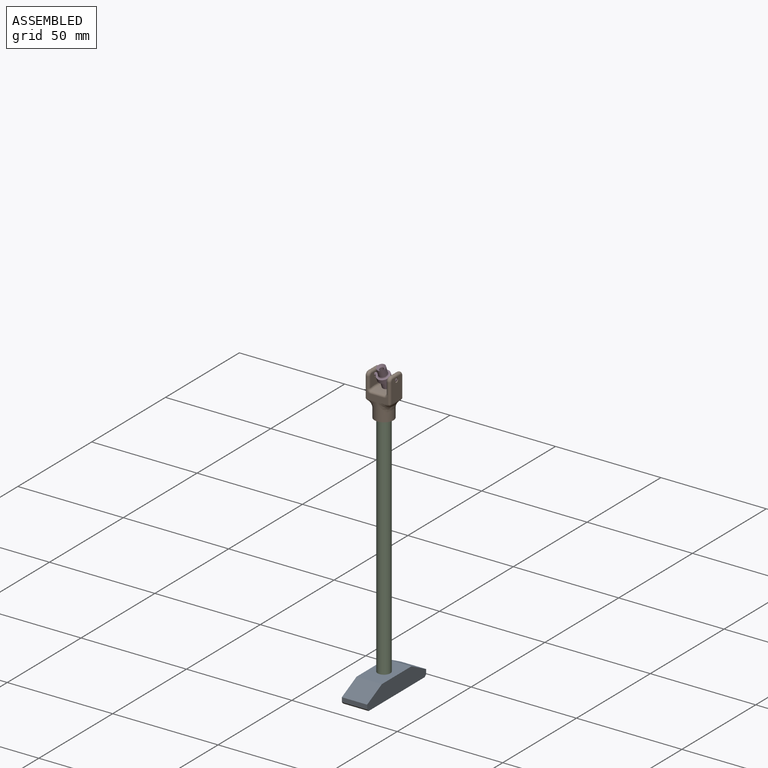
[diagram: assembled view]
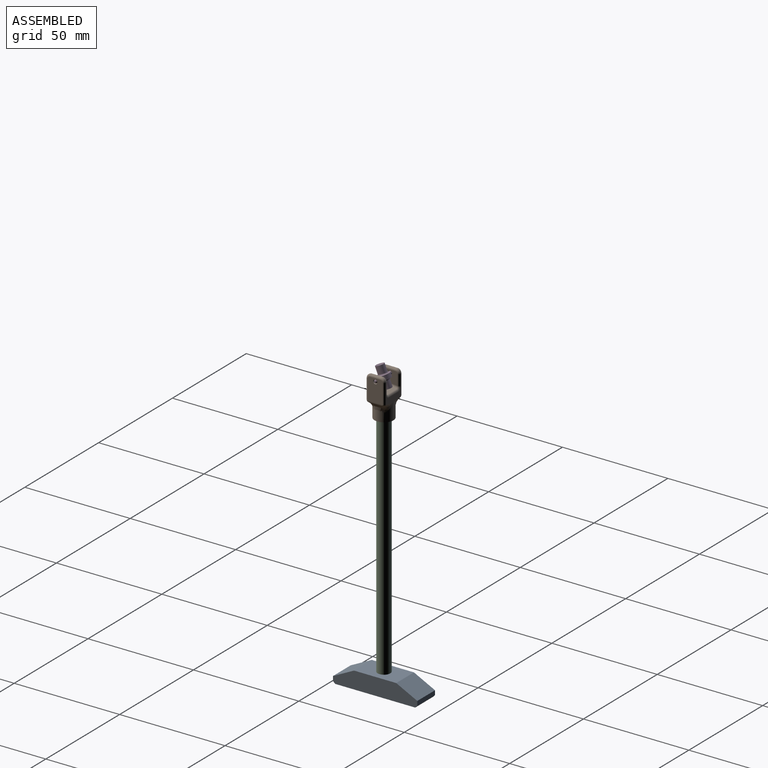
[diagram: assembled view, second angle]
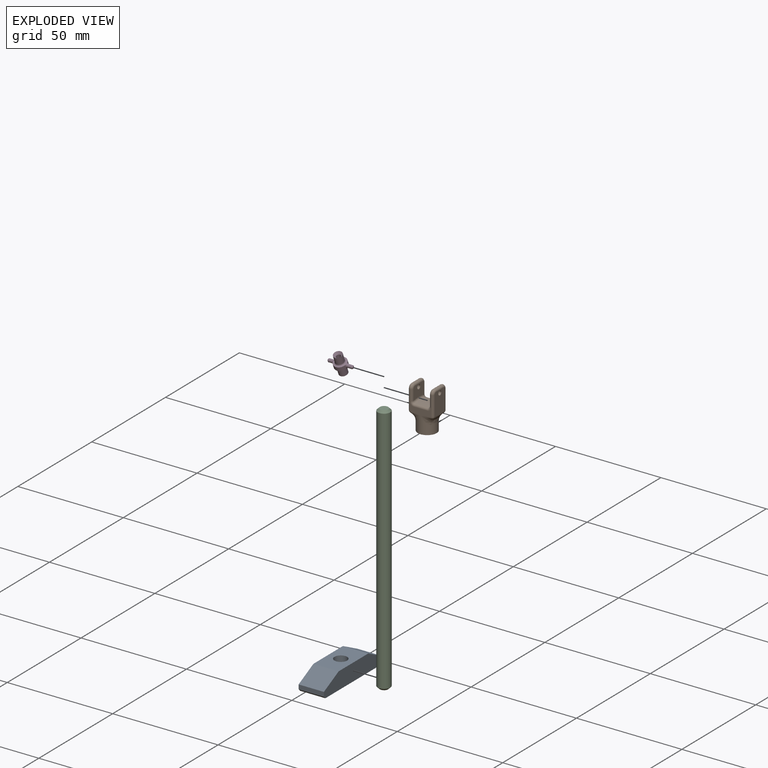
[diagram: exploded view]
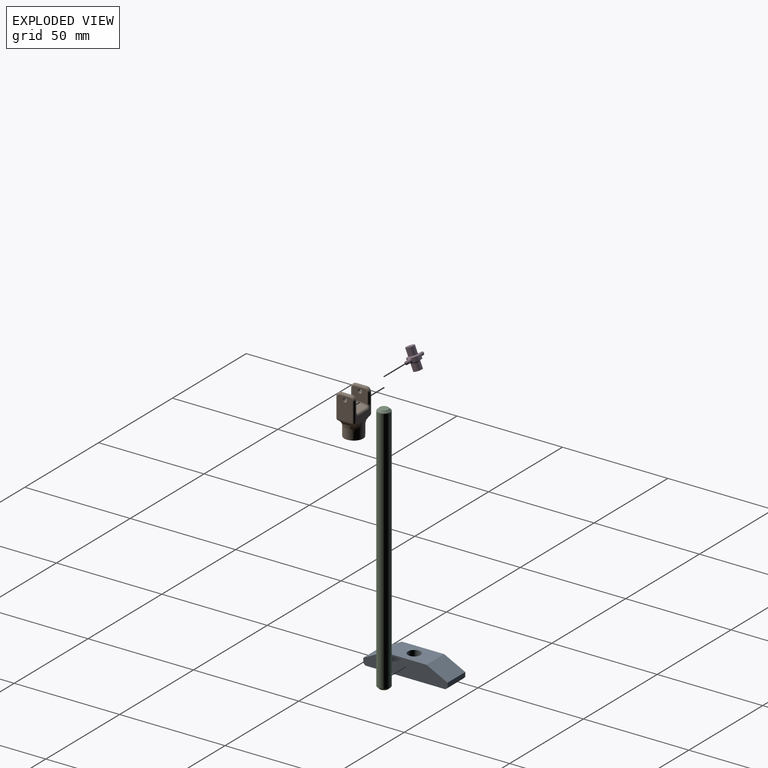
[diagram: exploded view, second angle]
ASSEMBLY  parts=4 mates=2
PART A: 12 faces, bbox 12x40x8.1 mm
  f0: plane 40x8.1mm, normal (1,0,0), area 273mm2, adj f1,f3,f5,f6,f8,f9,f10,f11
  f1: plane 12x2.1mm, normal (0,1,0), area 25.2mm2, adj f0,f2,f8,f10
  f2: plane 40x8.1mm, normal (-1,0,0), area 273mm2, adj f1,f3,f5,f6,f8,f9,f10,f11
  f3: plane 12x2.1mm, normal (0,-1,0), area 25.2mm2, adj f0,f2,f9,f11
  f4: cylinder r=3mm len=6.1mm, axis (0,0,-1), area 115mm2, adj f5,f7
  f5: plane 20x12mm, normal (0,0,1), area 211.7mm2, adj f0,f2,f4,f10,f11
  f6: plane 38x12mm, normal (0,0,-1), area 456mm2, adj f0,f2,f8,f9
  f7: plane 6x6mm, normal (0,0,1), area 28.3mm2, adj f4
  f8: plane 12x1mm, normal (0,0.71,-0.71), area 17mm2, adj f0,f1,f2,f6
  f9: plane 12x1mm, normal (0,-0.71,-0.71), area 17mm2, adj f0,f2,f3,f6
  f10: plane 12x10mm, normal (0,0.45,0.89), area 134.2mm2, adj f0,f1,f2,f5
  f11: plane 12x10mm, normal (0,-0.45,0.89), area 134.2mm2, adj f0,f2,f3,f5
PART B: 63 faces, bbox 12.4x9.7x20.5 mm
  f0: plane 10.37x5.36mm, normal (0,1,0), area 29.1mm2, adj f12,f14,f38,f39,f40,f41,f42,f43
  f1: plane 10.33x5.33mm, normal (0,-1,0), area 29.1mm2, adj f8,f13,f30,f31,f32,f49,f50,f51
  f2: plane 7x6mm, normal (-1,0,0), area 37.2mm2, adj f8,f9,f10,f11,f12,f28,f54
  f3: cylinder r=4.5mm len=9mm, axis (0,0,-1), area 148.7mm2, adj f18,f19,f20,f21,f22,f23,f24,f25
  f4: plane 7x6mm, normal (1,0,0), area 37.2mm2, adj f13,f14,f15,f16,f17,f29,f57
  f5: plane 10.55x7mm, normal (-1,0,0), area 69.9mm2, adj f13,f14,f15,f16,f17,f29,f34,f35
  f6: plane 10.55x7mm, normal (1,0,0), area 69.9mm2, adj f8,f9,f10,f11,f12,f28,f45,f46
  f7: cylinder r=21.21mm len=7.35mm, axis (-1,0,0), area 44.3mm2, adj f53,f54,f57,f58
  f8: cylinder r=1mm len=9.36mm, axis (0,0,1), area 22.6mm2, adj f1,f2,f6,f9,f48,f56
  f9: torus R=1mm, axis (-1,0,0), area 8.1mm2, adj f2,f6,f8,f10
  f10: cylinder r=1mm len=5mm, axis (0,-1,0), area 15.7mm2, adj f2,f6,f9,f11
  f11: torus R=1mm, axis (-1,0,0), area 8.1mm2, adj f2,f6,f10,f12
  f12: cylinder r=1mm len=9.36mm, axis (0,0,-1), area 22.6mm2, adj f0,f2,f6,f11,f44,f52
  f13: cylinder r=1mm len=9.36mm, axis (0,0,-1), area 22.6mm2, adj f1,f4,f5,f15,f33,f59
  f14: cylinder r=1mm len=9.36mm, axis (0,0,1), area 22.6mm2, adj f0,f4,f5,f16,f37,f55
  f15: torus R=1mm, axis (-1,0,0), area 8.1mm2, adj f4,f5,f13,f17
  f16: torus R=1mm, axis (-1,0,0), area 8.1mm2, adj f4,f5,f14,f17
  f17: cylinder r=1mm len=5mm, axis (0,1,0), area 15.7mm2, adj f4,f5,f15,f16
  f18: bspline ~5.51x3.49mm, area 4.6mm2, adj f3,f19,f41
  f19: bspline ~3.75x3.7mm, area 6.7mm2, adj f3,f18,f20,f42,f43,f45
  f20: bspline ~8.76x3.84mm, area 17mm2, adj f3,f19,f21,f46
  f21: bspline ~3.75x3.6mm, area 6.7mm2, adj f3,f20,f22,f47,f49,f50
  f22: bspline ~5.51x3.49mm, area 4.6mm2, adj f3,f21,f51
  f23: bspline ~5.51x3.49mm, area 4.6mm2, adj f3,f24,f30
  f24: bspline ~3.75x3.7mm, area 6.7mm2, adj f3,f23,f25,f31,f32,f34
  f25: bspline ~8.76x3.84mm, area 17mm2, adj f3,f24,f26,f35
  f26: bspline ~3.75x3.6mm, area 6.7mm2, adj f3,f25,f27,f36,f38,f39
  f27: bspline ~5.51x3.49mm, area 4.6mm2, adj f3,f26,f40
  f28: cylinder r=1mm len=2mm, axis (1,0,0), area 12.6mm2, adj f2,f6
  f29: cylinder r=1mm len=2mm, axis (1,0,0), area 12.6mm2, adj f4,f5
  f30: bspline ~4.78x0.76mm, area 1.2mm2, adj f1,f23,f31
  f31: bspline ~0.8x0.45mm, area 0.1mm2, adj f1,f24,f30,f32
  f32: bspline ~1.15x1.11mm, area 0.7mm2, adj f1,f24,f31,f33
  f33: sphere r=1mm, area 1.1mm2, adj f13,f32,f34
  f34: bspline ~0.98x0.87mm, area 0.5mm2, adj f5,f24,f33,f35
  f35: bspline ~6.85x0.85mm, area 5.5mm2, adj f5,f25,f34,f36
  f36: bspline ~0.97x0.85mm, area 0.5mm2, adj f5,f26,f35,f37
  f37: sphere r=1mm, area 1.1mm2, adj f14,f36,f38
  f38: bspline ~1.2x1.14mm, area 0.7mm2, adj f0,f26,f37,f39
  f39: bspline ~0.79x0.44mm, area 0.1mm2, adj f0,f26,f38,f40
  f40: bspline ~4.9x0.78mm, area 1.2mm2, adj f0,f27,f39
  f41: bspline ~4.69x0.74mm, area 1.2mm2, adj f0,f18,f42
  f42: bspline ~0.8x0.45mm, area 0.1mm2, adj f0,f19,f41,f43
  f43: bspline ~1.31x1.18mm, area 0.7mm2, adj f0,f19,f42,f44
  f44: sphere r=1mm, area 1mm2, adj f12,f43,f45
  f45: bspline ~0.98x0.85mm, area 0.5mm2, adj f6,f19,f44,f46
  f46: bspline ~7.61x0.93mm, area 5.5mm2, adj f6,f20,f45,f47
  f47: bspline ~0.98x0.85mm, area 0.5mm2, adj f6,f21,f46,f48
  f48: sphere r=1mm, area 1mm2, adj f8,f47,f49
  f49: bspline ~1.2x1.14mm, area 0.7mm2, adj f1,f21,f48,f50
  f50: bspline ~0.8x0.44mm, area 0.1mm2, adj f1,f21,f49,f51
  f51: bspline ~4.69x0.74mm, area 1.2mm2, adj f1,f22,f50
  f52: bspline ~2.44x2.36mm, area 3.2mm2, adj f0,f12,f53,f54
  f53: cylinder r=1mm len=6mm, axis (-1,0,0), area 8.4mm2, adj f0,f7,f52,f55
  f54: torus R=22.21mm, axis (-1,0,0), area 11.3mm2, adj f2,f7,f52,f56
  f55: bspline ~2.49x2.36mm, area 3.2mm2, adj f0,f14,f53,f57
  f56: bspline ~2.49x2.36mm, area 3.2mm2, adj f1,f8,f54,f58
  f57: torus R=22.21mm, axis (-1,0,0), area 11.3mm2, adj f4,f7,f55,f59
  f58: cylinder r=1mm len=6mm, axis (-1,0,0), area 8.4mm2, adj f1,f7,f56,f59
  f59: bspline ~2.44x2.36mm, area 3.2mm2, adj f1,f13,f57,f58
  f60: plane 9x9mm, normal (0,0,-1), area 32.9mm2, adj f3,f62
  f61: plane 6.25x6.25mm, normal (0,0,-1), area 30.7mm2, adj f62
  f62: cylinder r=3.12mm len=8mm, axis (0,0,-1), area 157.1mm2, adj f60,f61
PART C: 5 faces, bbox 120x6x6 mm
  f0: cylinder r=3mm len=118mm, axis (-1,0,0), area 2224.2mm2, adj f3,f4
  f1: plane 4x4mm, normal (1,0,0), area 12.6mm2, adj f4
  f2: plane 4x4mm, normal (-1,0,0), area 12.6mm2, adj f3
  f3: cone r=3mm half-angle=45deg, axis (1,0,0), area 22.2mm2, adj f0,f2
  f4: cone r=2mm half-angle=45deg, axis (-1,0,0), area 22.2mm2, adj f0,f1
PART D: 27 faces, bbox 10.1x12.1x6.6 mm
  f0: cylinder r=3mm len=5.74mm, axis (1,0,0), area 14.3mm2, adj f4,f5,f14,f18
  f1: cylinder r=1mm len=2.93mm, axis (1,0,0), area 18.4mm2, adj f8,f25
  f2: cylinder r=3mm len=5.81mm, axis (1,0,0), area 14.8mm2, adj f4,f5,f15,f19
  f3: cylinder r=2mm len=4mm, axis (1,0,0), area 43.6mm2, adj f7,f23
  f4: plane 6.08x6.08mm, normal (1,0,0), area 7mm2, adj f0,f2,f16,f17,f23
  f5: plane 6.08x6.08mm, normal (-1,0,0), area 7mm2, adj f0,f2,f13,f20,f24
  f6: cylinder r=2mm len=4mm, axis (1,0,0), area 41.9mm2, adj f8,f24
  f7: cone r=1mm half-angle=45deg, axis (1,0,0), area 13.1mm2, adj f3,f26
  f8: cone r=2mm half-angle=45deg, axis (-1,0,0), area 13.3mm2, adj f1,f6
  f9: plane 0.4x0.4mm, normal (0,1,0), area 0.1mm2, adj f21
  f10: cylinder r=0.8mm len=2.11mm, axis (0,1,0), area 10mm2, adj f17,f18,f19,f20,f21
  f11: plane 0.4x0.4mm, normal (0,-1,0), area 0.1mm2, adj f22
  f12: cylinder r=0.8mm len=2.11mm, axis (0,1,0), area 10mm2, adj f13,f14,f15,f16,f22
  f13: bspline ~1.77x0.65mm, area 0.8mm2, adj f5,f12,f14,f15
  f14: bspline ~2.33x0.81mm, area 1.2mm2, adj f0,f12,f13,f16
  f15: bspline ~2x0.7mm, area 1.3mm2, adj f2,f12,f13,f16
  f16: bspline ~1.78x0.67mm, area 0.8mm2, adj f4,f12,f14,f15
  f17: bspline ~1.77x0.65mm, area 0.8mm2, adj f4,f10,f18,f19
  f18: bspline ~2.33x0.81mm, area 1.2mm2, adj f0,f10,f17,f20
  f19: bspline ~2x0.7mm, area 1.3mm2, adj f2,f10,f17,f20
  f20: bspline ~1.78x0.67mm, area 0.8mm2, adj f5,f10,f18,f19
  f21: torus R=0.2mm, axis (0,-1,0), area 3.4mm2, adj f9,f10
  f22: torus R=0.2mm, axis (0,-1,0), area 3.4mm2, adj f11,f12
  f23: torus R=2.6mm, axis (1,0,0), area 13.1mm2, adj f3,f4
  f24: torus R=2.6mm, axis (1,0,0), area 13.1mm2, adj f5,f6
  f25: plane 2.04x2.04mm, normal (1,0,0), area 0.1mm2, adj f1,f26
  f26: cylinder r=1.02mm len=5.09mm, axis (-1,0,0), area 32.7mm2, adj f7,f25
PLACE A t=(97.41,24.17,-5.07)mm
PLACE B rot(axis=(0,0,1),180deg) t=(-41.94,-40.4,115.93)mm
PLACE C rot(axis=(0.71,0,-0.71),180deg) t=(101.39,103.22,55.93)mm
PLACE D rot(axis=(0.64,-0.64,0.43),133.7deg) t=(26.79,42.79,228.04)mm
MATE revolute D.f10 <-> B.f28  axis (1,0,0) through (26.79,24.17,129.5)mm
MATE fastened C.f0 <-> A.f4  axis (0,0,-1) through (26.79,24.17,-4.07)mm
